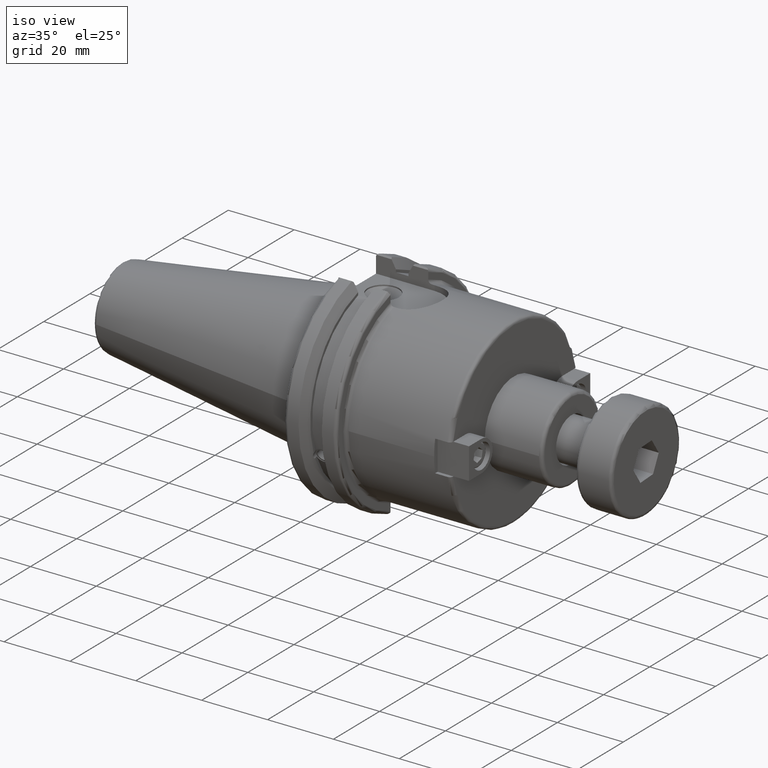
[diagram: clean part render]
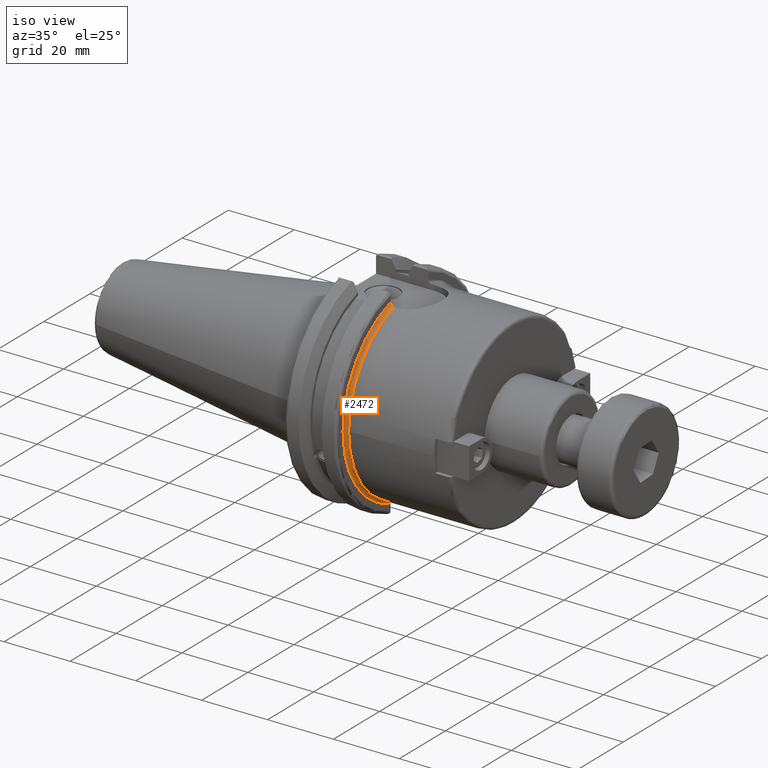
[diagram: same view with one face highlighted and labeled with its STEP entity id]
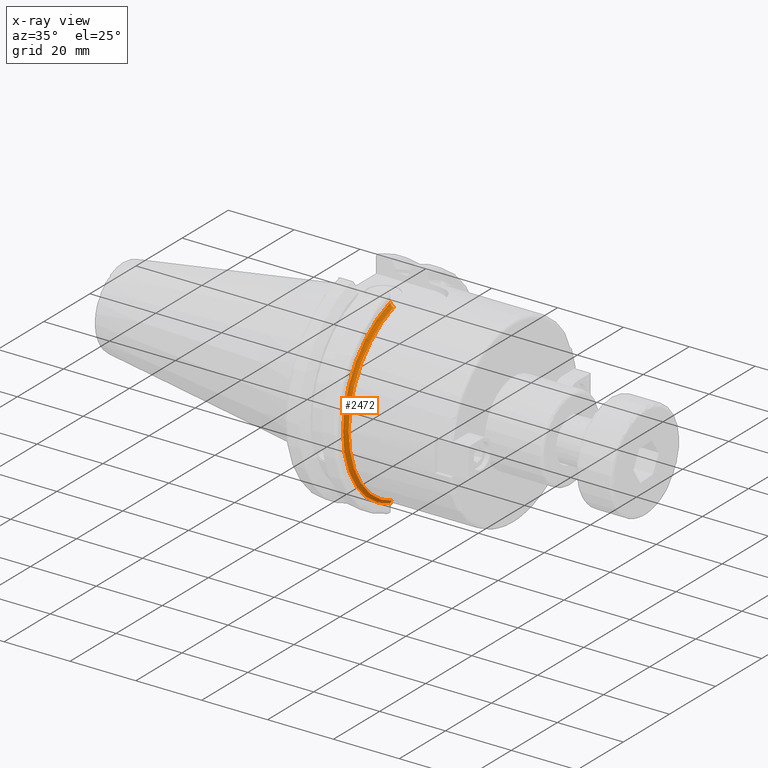
[diagram: x-ray of the same camera — body ghosted, the highlighted face saturated]
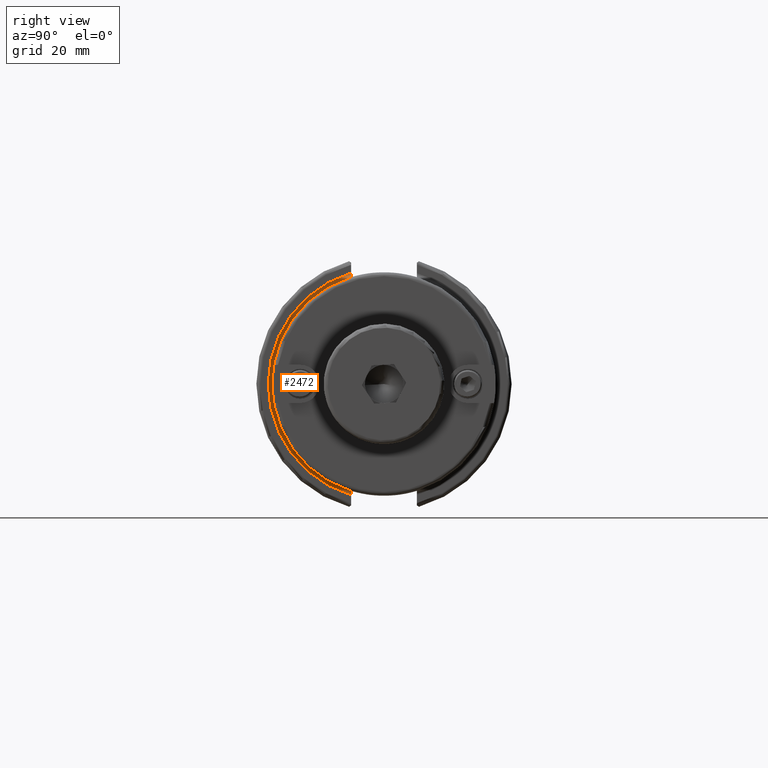
[diagram: same view with one face highlighted and labeled with its STEP entity id]
A machine part, iso view. The second image highlights one B-rep face of the part: STEP entity #2472.
The next image is the same camera in x-ray: the body ghosted, the highlighted face saturated — about 0% of this face is hidden behind the body in this view.
A second angle (right view) of the same face is appended — the face is thin or edge-on in the first view.
In plain terms, the highlighted toroidal blend (fillet) surface has major radius 28.79 mm and minor (blend) radius 1 mm.
Its self-contained STEP definition (entity closure, byte-faithful):
#96=TOROIDAL_SURFACE('',#2745,28.79,1.);
#201=CIRCLE('',#2717,27.79);
#203=CIRCLE('',#2719,27.79);
#218=CIRCLE('',#2746,28.79);
#343=FACE_OUTER_BOUND('',#494,.T.);
#494=EDGE_LOOP('',(#1733,#1734,#1735,#1736,#1737));
#981=B_SPLINE_CURVE_WITH_KNOTS('',3,(#4050,#4051,#4052,#4053,#4054,#4055,
#4056,#4057,#4058,#4059),.UNSPECIFIED.,.F.,.F.,(4,2,2,2,4),(0.151205397385998,
0.190375204730451,0.228754687185094,0.26611526328731,0.302614942543549),
 .UNSPECIFIED.);
#982=B_SPLINE_CURVE_WITH_KNOTS('',3,(#4061,#4062,#4063,#4064,#4065,#4066,
#4067,#4068,#4069,#4070),.UNSPECIFIED.,.F.,.F.,(4,2,2,2,4),(0.302614942543549,
0.339114621799788,0.376475197902003,0.414854680356646,0.4540244877011),
 .UNSPECIFIED.);
#1025=VERTEX_POINT('',#3843);
#1026=VERTEX_POINT('',#3845);
#1033=VERTEX_POINT('',#3893);
#1056=VERTEX_POINT('',#4049);
#1057=VERTEX_POINT('',#4060);
#1278=EDGE_CURVE('',#1026,#1025,#201,.T.);
#1286=EDGE_CURVE('',#1025,#1033,#203,.T.);
#1320=EDGE_CURVE('',#1056,#1026,#981,.T.);
#1321=EDGE_CURVE('',#1033,#1057,#982,.T.);
#1322=EDGE_CURVE('',#1057,#1056,#218,.T.);
#1733=ORIENTED_EDGE('',*,*,#1320,.T.);
#1734=ORIENTED_EDGE('',*,*,#1278,.T.);
#1735=ORIENTED_EDGE('',*,*,#1286,.T.);
#1736=ORIENTED_EDGE('',*,*,#1321,.T.);
#1737=ORIENTED_EDGE('',*,*,#1322,.T.);
#2472=ADVANCED_FACE('',(#343),#96,.F.);
#2717=AXIS2_PLACEMENT_3D('',#3846,#3049,#3050);
#2719=AXIS2_PLACEMENT_3D('',#3895,#3057,#3058);
#2745=AXIS2_PLACEMENT_3D('',#4048,#3122,#3123);
#2746=AXIS2_PLACEMENT_3D('',#4071,#3124,#3125);
#3049=DIRECTION('center_axis',(-1.,0.,0.));
#3050=DIRECTION('ref_axis',(0.,-1.,-1.22464679914735E-16));
#3057=DIRECTION('center_axis',(-1.,0.,0.));
#3058=DIRECTION('ref_axis',(0.,-1.,-1.22464679914735E-16));
#3122=DIRECTION('center_axis',(-1.,0.,0.));
#3123=DIRECTION('ref_axis',(0.,0.,1.));
#3124=DIRECTION('center_axis',(1.,0.,0.));
#3125=DIRECTION('ref_axis',(0.,-1.,-1.22464679914735E-16));
#3843=CARTESIAN_POINT('',(20.05,-27.79,-3.40329345483049E-15));
#3845=CARTESIAN_POINT('',(20.05,-8.18999999999999,-26.5557526724437));
#3846=CARTESIAN_POINT('Origin',(20.05,0.,0.));
#3893=CARTESIAN_POINT('',(20.05,-8.19000000000003,26.5557526724437));
#3895=CARTESIAN_POINT('Origin',(20.05,0.,0.));
#4048=CARTESIAN_POINT('Origin',(20.05,0.,0.));
#4049=CARTESIAN_POINT('',(19.05,-8.19,-27.6005072417157));
#4050=CARTESIAN_POINT('Ctrl Pts',(19.05,-8.19,-27.6005072417157));
#4051=CARTESIAN_POINT('Ctrl Pts',(19.05,-8.19,-27.4699412172342));
#4052=CARTESIAN_POINT('Ctrl Pts',(19.0796719924922,-8.19,-27.3160972905423));
#4053=CARTESIAN_POINT('Ctrl Pts',(19.1764401993451,-8.19,-27.0763955170086));
#4054=CARTESIAN_POINT('Ctrl Pts',(19.2597774636662,-8.19,-26.9474666406805));
#4055=CARTESIAN_POINT('Ctrl Pts',(19.435847896063,-8.19,-26.7665282004));
#4056=CARTESIAN_POINT('Ctrl Pts',(19.5587743255034,-8.19,-26.6815452886349));
#4057=CARTESIAN_POINT('Ctrl Pts',(19.785331763618,-8.19,-26.5851783525832));
#4058=CARTESIAN_POINT('Ctrl Pts',(19.9283344024792,-8.19,-26.5557526724437));
#4059=CARTESIAN_POINT('Ctrl Pts',(20.05,-8.19,-26.5557526724437));
#4060=CARTESIAN_POINT('',(19.05,-8.19,27.6005072417157));
#4061=CARTESIAN_POINT('Ctrl Pts',(20.05,-8.19,26.5557526724437));
#4062=CARTESIAN_POINT('Ctrl Pts',(19.9283344024792,-8.19,26.5557526724437));
#4063=CARTESIAN_POINT('Ctrl Pts',(19.785331763618,-8.19,26.5851783525832));
#4064=CARTESIAN_POINT('Ctrl Pts',(19.5587743255034,-8.19,26.6815452886349));
#4065=CARTESIAN_POINT('Ctrl Pts',(19.435847896063,-8.19,26.7665282004));
#4066=CARTESIAN_POINT('Ctrl Pts',(19.2597774636662,-8.19,26.9474666406805));
#4067=CARTESIAN_POINT('Ctrl Pts',(19.1764401993451,-8.19,27.0763955170086));
#4068=CARTESIAN_POINT('Ctrl Pts',(19.0796719924922,-8.19,27.3160972905423));
#4069=CARTESIAN_POINT('Ctrl Pts',(19.05,-8.19,27.4699412172342));
#4070=CARTESIAN_POINT('Ctrl Pts',(19.05,-8.19,27.6005072417157));
#4071=CARTESIAN_POINT('Origin',(19.05,0.,0.));